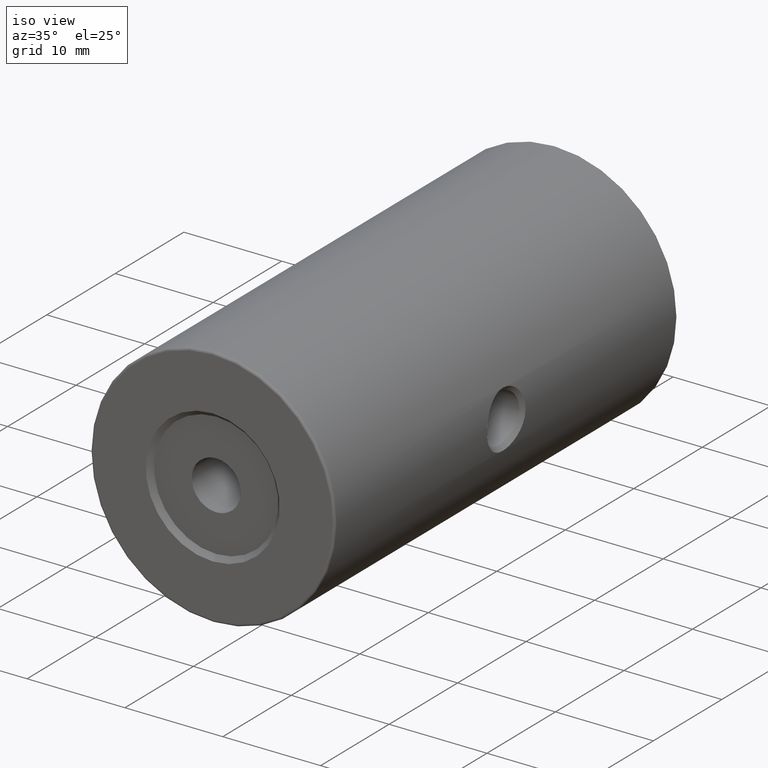
[diagram: clean part render]
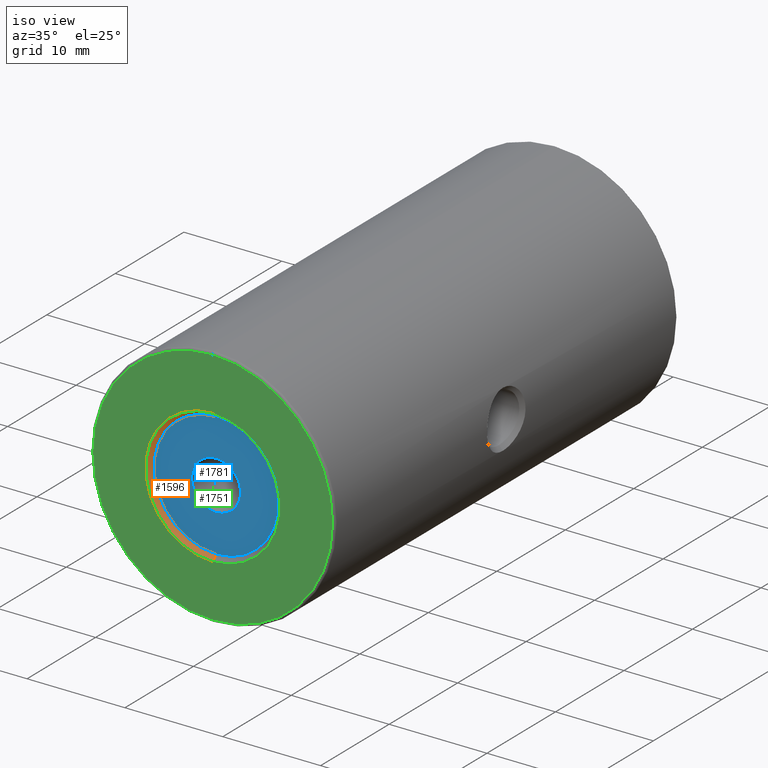
[diagram: same view with three faces highlighted in distinct colors, each labeled with its STEP entity id]
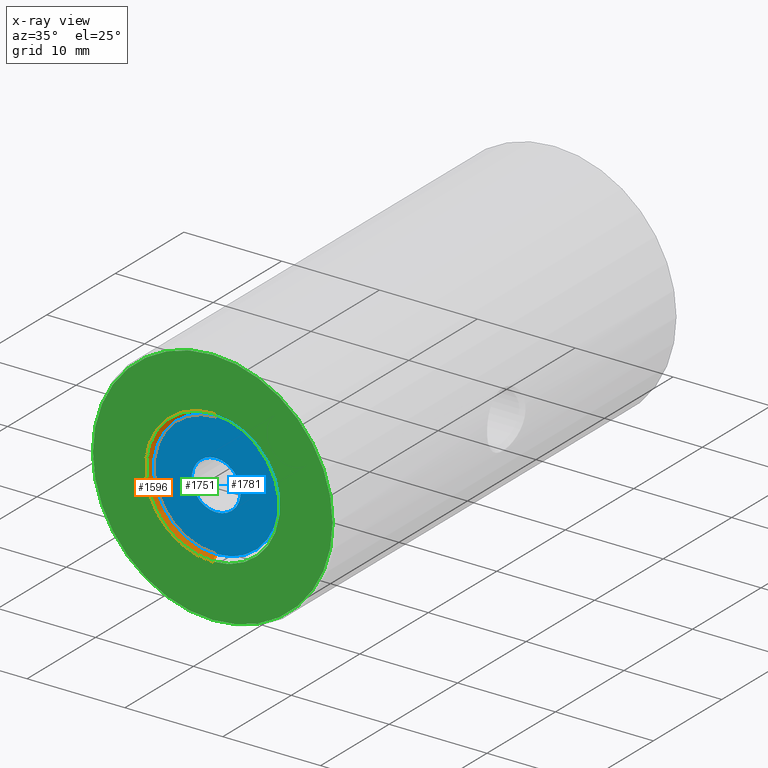
[diagram: x-ray of the same camera — body ghosted, the three highlighted faces saturated]
A machine part, iso view with three faces highlighted in distinct colors.
The next image is the same camera in x-ray (body ghosted, the three faces saturated) — at least one of them is partly hidden behind the body in this view.
Their STEP definitions:

[orange] entity #1596 — the highlighted conical surface has half-angle 45 deg.
#56 = DIRECTION ( 'NONE',  ( -0.0000000000000000000, 1.000000000000000000, -0.0000000000000000000 ) ) ;
#81 = DIRECTION ( 'NONE',  ( 0.0000000000000000000, 0.0000000000000000000, 1.000000000000000000 ) ) ;
#348 = DIRECTION ( 'NONE',  ( 8.659560562354950115E-17, -0.7071067811865463515, 0.7071067811865487940 ) ) ;
#375 = CIRCLE ( 'NONE', #875, 6.350000000000001421 ) ;
#479 = EDGE_LOOP ( 'NONE', ( #517, #1208, #2130, #1138 ) ) ;
#484 = AXIS2_PLACEMENT_3D ( 'NONE', #1403, #1946, #81 ) ;
#517 = ORIENTED_EDGE ( 'NONE', *, *, #874, .T. ) ;
#656 = CIRCLE ( 'NONE', #484, 6.850000000000008527 ) ;
#765 = CARTESIAN_POINT ( 'NONE',  ( -22.50520183104453409, -23.60174781523060972, 50.00000000000000000 ) ) ;
#770 = EDGE_CURVE ( 'NONE', #1082, #3329, #1990, .T. ) ;
#874 = EDGE_CURVE ( 'NONE', #1120, #1082, #375, .T. ) ;
#875 = AXIS2_PLACEMENT_3D ( 'NONE', #2461, #56, #1117 ) ;
#978 = VECTOR ( 'NONE', #1387, 1000.000000000000000 ) ;
#989 = CARTESIAN_POINT ( 'NONE',  ( -22.50520183104453409, -23.10174781523060972, 56.35000000000000142 ) ) ;
#1023 = DIRECTION ( 'NONE',  ( -0.0000000000000000000, -1.000000000000000000, -0.0000000000000000000 ) ) ;
#1082 = VERTEX_POINT ( 'NONE', #989 ) ;
#1117 = DIRECTION ( 'NONE',  ( 0.0000000000000000000, 0.0000000000000000000, 1.000000000000000000 ) ) ;
#1120 = VERTEX_POINT ( 'NONE', #2292 ) ;
#1138 = ORIENTED_EDGE ( 'NONE', *, *, #3250, .F. ) ;
#1167 = EDGE_CURVE ( 'NONE', #3256, #3329, #656, .T. ) ;
#1208 = ORIENTED_EDGE ( 'NONE', *, *, #770, .T. ) ;
#1387 = DIRECTION ( 'NONE',  ( 0.0000000000000000000, -0.7071067811865463515, -0.7071067811865487940 ) ) ;
#1403 = CARTESIAN_POINT ( 'NONE',  ( -22.50520183104453409, -23.60174781523060972, 50.00000000000000000 ) ) ;
#1404 = CARTESIAN_POINT ( 'NONE',  ( -22.50520183104453409, -23.60174781523060972, 43.14999999999999147 ) ) ;
#1596 = ADVANCED_FACE ( 'NONE', ( #3424 ), #2660, .F. ) ;
#1647 = LINE ( 'NONE', #2714, #978 ) ;
#1821 = VECTOR ( 'NONE', #348, 1000.000000000000000 ) ;
#1946 = DIRECTION ( 'NONE',  ( 0.0000000000000000000, 1.000000000000000000, 0.0000000000000000000 ) ) ;
#1990 = LINE ( 'NONE', #2445, #1821 ) ;
#2090 = DIRECTION ( 'NONE',  ( 0.0000000000000000000, 0.0000000000000000000, -1.000000000000000000 ) ) ;
#2130 = ORIENTED_EDGE ( 'NONE', *, *, #1167, .F. ) ;
#2215 = AXIS2_PLACEMENT_3D ( 'NONE', #765, #1023, #2090 ) ;
#2292 = CARTESIAN_POINT ( 'NONE',  ( -22.50520183104453409, -23.10174781523060972, 43.64999999999999858 ) ) ;
#2445 = CARTESIAN_POINT ( 'NONE',  ( -22.50520183104453409, -23.60174781523060972, 56.85000000000000853 ) ) ;
#2461 = CARTESIAN_POINT ( 'NONE',  ( -22.50520183104453409, -23.10174781523060972, 50.00000000000000000 ) ) ;
#2660 = CONICAL_SURFACE ( 'NONE', #2215, 6.850000000000008527, 0.7853981633974500554 ) ;
#2714 = CARTESIAN_POINT ( 'NONE',  ( -22.50520183104453409, -23.60174781523060972, 43.14999999999999147 ) ) ;
#3250 = EDGE_CURVE ( 'NONE', #1120, #3256, #1647, .T. ) ;
#3256 = VERTEX_POINT ( 'NONE', #1404 ) ;
#3329 = VERTEX_POINT ( 'NONE', #3365 ) ;
#3365 = CARTESIAN_POINT ( 'NONE',  ( -22.50520183104453409, -23.60174781523060972, 56.85000000000000853 ) ) ;
#3424 = FACE_OUTER_BOUND ( 'NONE', #479, .T. ) ;

[blue] entity #1781 — the highlighted planar face has unit normal (0, -1, 0).
#56 = DIRECTION ( 'NONE',  ( -0.0000000000000000000, 1.000000000000000000, -0.0000000000000000000 ) ) ;
#127 = FACE_OUTER_BOUND ( 'NONE', #3032, .T. ) ;
#278 = DIRECTION ( 'NONE',  ( 0.0000000000000000000, -1.000000000000000000, 0.0000000000000000000 ) ) ;
#313 = CARTESIAN_POINT ( 'NONE',  ( -22.50520183104453409, -23.10174781523060972, 52.50000000000000000 ) ) ;
#375 = CIRCLE ( 'NONE', #875, 6.350000000000001421 ) ;
#384 = FACE_BOUND ( 'NONE', #1941, .T. ) ;
#432 = AXIS2_PLACEMENT_3D ( 'NONE', #955, #3095, #1512 ) ;
#543 = DIRECTION ( 'NONE',  ( 0.0000000000000000000, 0.0000000000000000000, -1.000000000000000000 ) ) ;
#548 = AXIS2_PLACEMENT_3D ( 'NONE', #1830, #278, #543 ) ;
#655 = EDGE_CURVE ( 'NONE', #684, #1798, #1322, .T. ) ;
#684 = VERTEX_POINT ( 'NONE', #313 ) ;
#707 = AXIS2_PLACEMENT_3D ( 'NONE', #3043, #1234, #1726 ) ;
#795 = CARTESIAN_POINT ( 'NONE',  ( -22.50520183104453409, -23.10174781523060972, 50.00000000000000000 ) ) ;
#874 = EDGE_CURVE ( 'NONE', #1120, #1082, #375, .T. ) ;
#875 = AXIS2_PLACEMENT_3D ( 'NONE', #2461, #56, #1117 ) ;
#955 = CARTESIAN_POINT ( 'NONE',  ( -22.50520183104453409, -23.10174781523060972, 50.00000000000000000 ) ) ;
#989 = CARTESIAN_POINT ( 'NONE',  ( -22.50520183104453409, -23.10174781523060972, 56.35000000000000142 ) ) ;
#1063 = ORIENTED_EDGE ( 'NONE', *, *, #1269, .F. ) ;
#1082 = VERTEX_POINT ( 'NONE', #989 ) ;
#1117 = DIRECTION ( 'NONE',  ( 0.0000000000000000000, 0.0000000000000000000, 1.000000000000000000 ) ) ;
#1120 = VERTEX_POINT ( 'NONE', #2292 ) ;
#1234 = DIRECTION ( 'NONE',  ( 0.0000000000000000000, -1.000000000000000000, 0.0000000000000000000 ) ) ;
#1269 = EDGE_CURVE ( 'NONE', #1082, #1120, #1934, .T. ) ;
#1322 = CIRCLE ( 'NONE', #1436, 2.499999999999995115 ) ;
#1434 = ORIENTED_EDGE ( 'NONE', *, *, #1630, .F. ) ;
#1436 = AXIS2_PLACEMENT_3D ( 'NONE', #795, #3327, #3064 ) ;
#1469 = ORIENTED_EDGE ( 'NONE', *, *, #874, .F. ) ;
#1512 = DIRECTION ( 'NONE',  ( 0.0000000000000000000, 0.0000000000000000000, 1.000000000000000000 ) ) ;
#1630 = EDGE_CURVE ( 'NONE', #1798, #684, #2044, .T. ) ;
#1726 = DIRECTION ( 'NONE',  ( 0.0000000000000000000, 0.0000000000000000000, 1.000000000000000000 ) ) ;
#1781 = ADVANCED_FACE ( 'NONE', ( #384, #127 ), #2844, .T. ) ;
#1798 = VERTEX_POINT ( 'NONE', #2302 ) ;
#1830 = CARTESIAN_POINT ( 'NONE',  ( -22.50520183104453409, -23.10174781523060972, 50.00000000000000000 ) ) ;
#1934 = CIRCLE ( 'NONE', #432, 6.350000000000001421 ) ;
#1941 = EDGE_LOOP ( 'NONE', ( #1434, #2484 ) ) ;
#2044 = CIRCLE ( 'NONE', #548, 2.499999999999995115 ) ;
#2292 = CARTESIAN_POINT ( 'NONE',  ( -22.50520183104453409, -23.10174781523060972, 43.64999999999999858 ) ) ;
#2302 = CARTESIAN_POINT ( 'NONE',  ( -22.50520183104453409, -23.10174781523060972, 47.50000000000000711 ) ) ;
#2461 = CARTESIAN_POINT ( 'NONE',  ( -22.50520183104453409, -23.10174781523060972, 50.00000000000000000 ) ) ;
#2484 = ORIENTED_EDGE ( 'NONE', *, *, #655, .F. ) ;
#2844 = PLANE ( 'NONE',  #707 ) ;
#3032 = EDGE_LOOP ( 'NONE', ( #1469, #1063 ) ) ;
#3043 = CARTESIAN_POINT ( 'NONE',  ( -22.50520183104453409, -23.10174781523060972, 50.00000000000000000 ) ) ;
#3064 = DIRECTION ( 'NONE',  ( 0.0000000000000000000, 0.0000000000000000000, -1.000000000000000000 ) ) ;
#3095 = DIRECTION ( 'NONE',  ( -0.0000000000000000000, 1.000000000000000000, -0.0000000000000000000 ) ) ;
#3327 = DIRECTION ( 'NONE',  ( 0.0000000000000000000, -1.000000000000000000, 0.0000000000000000000 ) ) ;

[green] entity #1751 — the highlighted planar face has unit normal (0, 1, 0).
#43 = EDGE_LOOP ( 'NONE', ( #511, #2523 ) ) ;
#81 = DIRECTION ( 'NONE',  ( 0.0000000000000000000, 0.0000000000000000000, 1.000000000000000000 ) ) ;
#106 = CIRCLE ( 'NONE', #3114, 12.24999999999999645 ) ;
#174 = CARTESIAN_POINT ( 'NONE',  ( -22.50520183104453409, -23.60174781523060972, 50.00000000000000000 ) ) ;
#201 = CIRCLE ( 'NONE', #2827, 12.24999999999999645 ) ;
#265 = ORIENTED_EDGE ( 'NONE', *, *, #1579, .T. ) ;
#401 = DIRECTION ( 'NONE',  ( 0.0000000000000000000, 0.0000000000000000000, 1.000000000000000000 ) ) ;
#417 = CARTESIAN_POINT ( 'NONE',  ( -22.50520183104453409, -23.60174781523060972, 50.00000000000000000 ) ) ;
#468 = DIRECTION ( 'NONE',  ( -0.0000000000000000000, -1.000000000000000000, -0.0000000000000000000 ) ) ;
#484 = AXIS2_PLACEMENT_3D ( 'NONE', #1403, #1946, #81 ) ;
#493 = EDGE_LOOP ( 'NONE', ( #529, #265 ) ) ;
#511 = ORIENTED_EDGE ( 'NONE', *, *, #1167, .T. ) ;
#529 = ORIENTED_EDGE ( 'NONE', *, *, #3297, .T. ) ;
#604 = CARTESIAN_POINT ( 'NONE',  ( -22.50520183104453409, -23.60174781523060972, 50.00000000000000000 ) ) ;
#641 = DIRECTION ( 'NONE',  ( 0.0000000000000000000, 1.000000000000000000, 0.0000000000000000000 ) ) ;
#656 = CIRCLE ( 'NONE', #484, 6.850000000000008527 ) ;
#664 = PLANE ( 'NONE',  #1597 ) ;
#1070 = VERTEX_POINT ( 'NONE', #1763 ) ;
#1093 = AXIS2_PLACEMENT_3D ( 'NONE', #417, #641, #401 ) ;
#1167 = EDGE_CURVE ( 'NONE', #3256, #3329, #656, .T. ) ;
#1403 = CARTESIAN_POINT ( 'NONE',  ( -22.50520183104453409, -23.60174781523060972, 50.00000000000000000 ) ) ;
#1404 = CARTESIAN_POINT ( 'NONE',  ( -22.50520183104453409, -23.60174781523060972, 43.14999999999999147 ) ) ;
#1449 = FACE_BOUND ( 'NONE', #43, .T. ) ;
#1579 = EDGE_CURVE ( 'NONE', #2538, #1070, #106, .T. ) ;
#1597 = AXIS2_PLACEMENT_3D ( 'NONE', #174, #2780, #1773 ) ;
#1663 = DIRECTION ( 'NONE',  ( -0.0000000000000000000, -1.000000000000000000, -0.0000000000000000000 ) ) ;
#1751 = ADVANCED_FACE ( 'NONE', ( #3370, #1449 ), #664, .F. ) ;
#1763 = CARTESIAN_POINT ( 'NONE',  ( -22.50520183104453409, -23.60174781523060972, 62.25000000000000000 ) ) ;
#1773 = DIRECTION ( 'NONE',  ( 0.0000000000000000000, -0.0000000000000000000, 1.000000000000000000 ) ) ;
#1946 = DIRECTION ( 'NONE',  ( 0.0000000000000000000, 1.000000000000000000, 0.0000000000000000000 ) ) ;
#2144 = CARTESIAN_POINT ( 'NONE',  ( -22.50520183104453409, -23.60174781523060972, 50.00000000000000000 ) ) ;
#2235 = EDGE_CURVE ( 'NONE', #3329, #3256, #2378, .T. ) ;
#2378 = CIRCLE ( 'NONE', #1093, 6.850000000000008527 ) ;
#2523 = ORIENTED_EDGE ( 'NONE', *, *, #2235, .T. ) ;
#2538 = VERTEX_POINT ( 'NONE', #3219 ) ;
#2615 = DIRECTION ( 'NONE',  ( 0.0000000000000000000, 0.0000000000000000000, 1.000000000000000000 ) ) ;
#2732 = DIRECTION ( 'NONE',  ( 0.0000000000000000000, 0.0000000000000000000, 1.000000000000000000 ) ) ;
#2780 = DIRECTION ( 'NONE',  ( 0.0000000000000000000, 1.000000000000000000, 0.0000000000000000000 ) ) ;
#2827 = AXIS2_PLACEMENT_3D ( 'NONE', #604, #1663, #2732 ) ;
#3114 = AXIS2_PLACEMENT_3D ( 'NONE', #2144, #468, #2615 ) ;
#3219 = CARTESIAN_POINT ( 'NONE',  ( -22.50520183104453409, -23.60174781523060972, 37.75000000000000711 ) ) ;
#3256 = VERTEX_POINT ( 'NONE', #1404 ) ;
#3297 = EDGE_CURVE ( 'NONE', #1070, #2538, #201, .T. ) ;
#3329 = VERTEX_POINT ( 'NONE', #3365 ) ;
#3365 = CARTESIAN_POINT ( 'NONE',  ( -22.50520183104453409, -23.60174781523060972, 56.85000000000000853 ) ) ;
#3370 = FACE_OUTER_BOUND ( 'NONE', #493, .T. ) ;